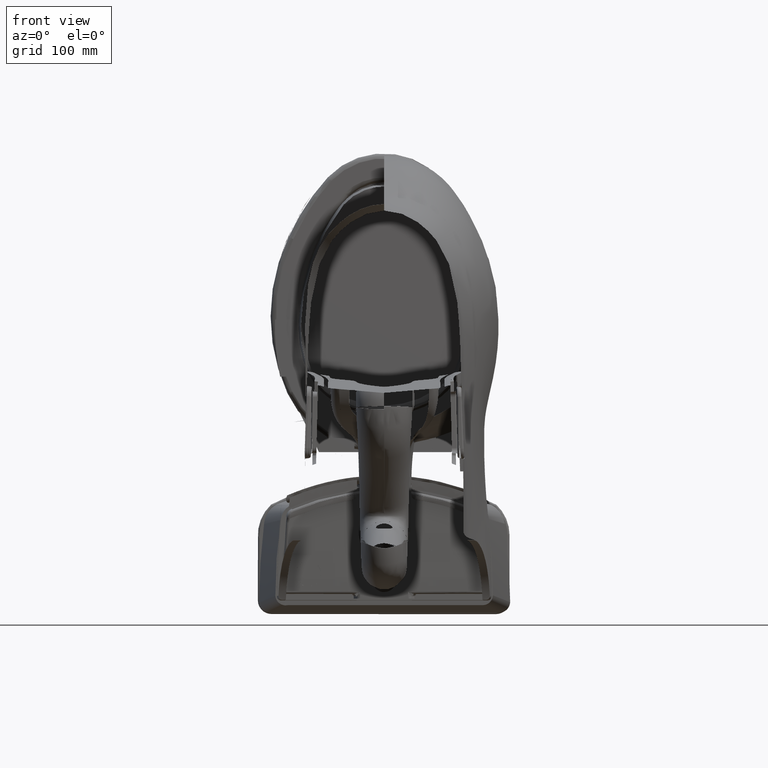
[diagram: clean part render]
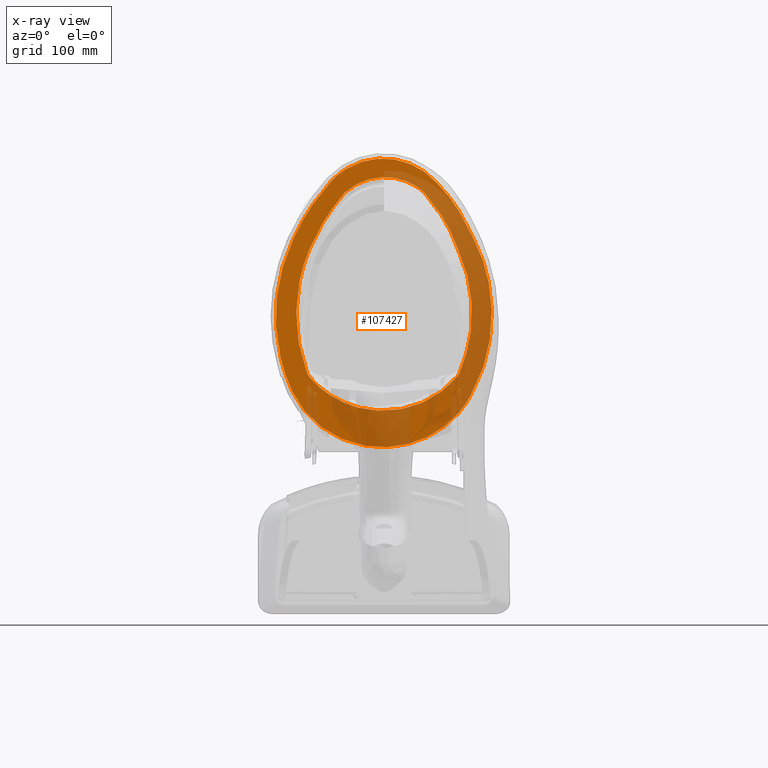
[diagram: x-ray — body ghosted, one internal face saturated and labeled with its STEP entity id]
A machine part, front view, then the same camera in x-ray: the body is ghosted and one INTERNAL B-rep face — a face not visible from any outside direction — is saturated and labeled: STEP entity #107427.
In plain terms, the highlighted planar face has unit normal (0, -1, 0).
Its self-contained STEP definition (entity closure, byte-faithful):
#9 = CARTESIAN_POINT ( 'NONE',  ( -4.669779761377236900, -12.35315010874654400, 0.7725978460830961200 ) ) ;
#158 = B_SPLINE_CURVE_WITH_KNOTS ( 'NONE', 3,
 ( #155656, #10050, #44532, #107279, #34448, #129167 ),
 .UNSPECIFIED., .F., .F.,
 ( 4, 2, 4 ),
 ( 0.0000000000000000000, 0.4990637102294244200, 0.9981274204588488400 ),
 .UNSPECIFIED. ) ;
#245 = CARTESIAN_POINT ( 'NONE',  ( -0.3920707766531103000, -2.325511953292913600, 0.7725978460837795700 ) ) ;
#478 = CARTESIAN_POINT ( 'NONE',  ( 2.002280061490929100, -0.3979767425816975200, 0.7725978460264896200 ) ) ;
#489 = CARTESIAN_POINT ( 'NONE',  ( 6.164669573252279400, -5.000828981089080500, 0.7725978448628684200 ) ) ;
#762 = CARTESIAN_POINT ( 'NONE',  ( 1.657319613992480200, -2.561519792685433000, 0.7725978460837795700 ) ) ;
#1288 = CARTESIAN_POINT ( 'NONE',  ( -3.326612292280315400, -3.263275277790945100, 0.7725978460837795700 ) ) ;
#1729 = CARTESIAN_POINT ( 'NONE',  ( 5.748355124389373600, -9.907585766883871200, 0.7725978460837795700 ) ) ;
#2259 = CARTESIAN_POINT ( 'NONE',  ( 5.779347650297983000, -7.154381951116368700, 0.7725978460837795700 ) ) ;
#2337 = CARTESIAN_POINT ( 'NONE',  ( -4.037140288301012300, -3.798934178944692400, 0.7725978460837794600 ) ) ;
#2481 = PLANE ( 'NONE',  #38969 ) ;
#2717 = CARTESIAN_POINT ( 'NONE',  ( 5.479175904001190000, -13.21659062506076900, 0.7725966181693841900 ) ) ;
#2870 = CARTESIAN_POINT ( 'NONE',  ( -4.701702766705125200, -4.490626281361876700, 0.7725978460837794600 ) ) ;
#3013 = DIRECTION ( 'NONE',  ( -1.000000000000000000, 0.0000000000000000000, -0.0000000000000000000 ) ) ;
#4687 = CARTESIAN_POINT ( 'NONE',  ( 2.099210194329982100, -17.48628316189977000, 0.7725978459827457200 ) ) ;
#4983 = VERTEX_POINT ( 'NONE', #137037 ) ;
#5824 = CARTESIAN_POINT ( 'NONE',  ( -5.660339307413952500, -13.02649773354710100, 0.7725978367612504900 ) ) ;
#6134 = EDGE_CURVE ( 'NONE', #39877, #57457, #17722, .T. ) ;
#8695 = CARTESIAN_POINT ( 'NONE',  ( 3.884164596736062100, -13.97749283188150000, 0.7725974613814649000 ) ) ;
#9405 = CARTESIAN_POINT ( 'NONE',  ( 4.302381671055888600, -15.29890389705522900, 0.7725977861414616800 ) ) ;
#9581 = CARTESIAN_POINT ( 'NONE',  ( -4.009093889609284900, -1.367279434801679900, 0.7725978460779485700 ) ) ;
#9911 = EDGE_LOOP ( 'NONE', ( #67146, #143875, #155766, #146006, #81087, #135890, #86311, #57634, #90700 ) ) ;
#10050 = CARTESIAN_POINT ( 'NONE',  ( -3.768116901248740500, -16.11721389943625800, 0.7725978460837795700 ) ) ;
#10112 = CARTESIAN_POINT ( 'NONE',  ( -3.304285500179292800, -0.8920013438489806700, 0.7725978460740519100 ) ) ;
#10432 = CARTESIAN_POINT ( 'NONE',  ( -4.778795318902705700, -4.602506205538563000, 0.7725978460837793500 ) ) ;
#10646 = CARTESIAN_POINT ( 'NONE',  ( -1.438350107723826800, -0.1786885459336738100, 0.7725978460611261400 ) ) ;
#10935 = CARTESIAN_POINT ( 'NONE',  ( 1.576039298657716700, -2.538535017898031500, 0.7725978460837795700 ) ) ;
#11161 = CARTESIAN_POINT ( 'NONE',  ( -2.536377864032248700, -0.5153061874789044400, 0.7725978460691690400 ) ) ;
#11442 = CARTESIAN_POINT ( 'NONE',  ( 3.750852303692794100, -3.657433556852522000, 0.7725978460837795700 ) ) ;
#11961 = CARTESIAN_POINT ( 'NONE',  ( 1.320478238995866200, -2.474858513301968300, 0.7725978460837795700 ) ) ;
#12221 = CARTESIAN_POINT ( 'NONE',  ( 5.480895730464324900, -13.21337790979908400, 0.7725953934359218700 ) ) ;
#12491 = CARTESIAN_POINT ( 'NONE',  ( -1.002147212140945200, -2.389478314491338700, 0.7725978460837795700 ) ) ;
#12738 = CARTESIAN_POINT ( 'NONE',  ( 6.677801258433408500, -7.479461234123879100, 0.7725977848637984900 ) ) ;
#13015 = CARTESIAN_POINT ( 'NONE',  ( 4.135942194806526500, -3.997048674490201800, 0.7725978460837794600 ) ) ;
#13525 = CARTESIAN_POINT ( 'NONE',  ( -4.113244636608624400, -3.866365499047542500, 0.7725978460837795700 ) ) ;
#13997 = CARTESIAN_POINT ( 'NONE',  ( 4.671538096263875100, -4.633697563927823300, 0.7725978460837795700 ) ) ;
#14532 =( BOUNDED_CURVE ( )  B_SPLINE_CURVE ( 3, ( #129262, #104246, #19779, #140432 ),
 .UNSPECIFIED., .F., .F. ) 
 B_SPLINE_CURVE_WITH_KNOTS ( ( 4, 4 ),
 ( 0.0000000000000000000, 1.000000000000000000 ),
 .UNSPECIFIED. ) 
 CURVE ( )  GEOMETRIC_REPRESENTATION_ITEM ( )  RATIONAL_B_SPLINE_CURVE ( ( 1.000000000000000000, 0.9939395604693852500, 0.9939395604693852500, 1.000000000000000000 ) ) 
 REPRESENTATION_ITEM ( '' )  );
#14742 = CARTESIAN_POINT ( 'NONE',  ( 5.687059689474409700, -3.169432824957086700, 0.7725978460837795700 ) ) ;
#15011 = B_SPLINE_CURVE_WITH_KNOTS ( 'NONE', 3,
 ( #65255, #149824, #53016, #101414 ),
 .UNSPECIFIED., .F., .F.,
 ( 4, 4 ),
 ( 0.9953565597775911900, 1.000000000000000000 ),
 .UNSPECIFIED. ) ;
#15027 = CARTESIAN_POINT ( 'NONE',  ( -4.701702766705125200, -4.490626281361876700, 0.7725978460837794600 ) ) ;
#15122 = CARTESIAN_POINT ( 'NONE',  ( -2.514960868314960700, -2.831690198003149900, 0.7725978460837795700 ) ) ;
#15290 = CARTESIAN_POINT ( 'NONE',  ( -5.663680293045708900, -13.01903612620339800, 0.7725978398454184100 ) ) ;
#15998 = ORIENTED_EDGE ( 'NONE', *, *, #53065, .F. ) ;
#16047 = CARTESIAN_POINT ( 'NONE',  ( 5.474260704766879600, -13.22576853858697300, 0.7725953811638974800 ) ) ;
#16820 = CARTESIAN_POINT ( 'NONE',  ( 6.704659037840631400, -8.264545431985476800, 0.7725977117835412000 ) ) ;
#17126 = CARTESIAN_POINT ( 'NONE',  ( 5.466105836528326400, -13.24091792027046700, 0.7725966060811750900 ) ) ;
#17722 = B_SPLINE_CURVE_WITH_KNOTS ( 'NONE', 3,
 ( #117634, #45262, #129369, #130401, #117122, #8695, #33619, #44744, #93711, #129882 ),
 .UNSPECIFIED., .F., .F.,
 ( 4, 2, 2, 2, 4 ),
 ( 0.0000000000000000000, 0.2500000000000000000, 0.5000000000000000000, 0.7500000000000000000, 1.000000000000000000 ),
 .UNSPECIFIED. ) ;
#18312 = CARTESIAN_POINT ( 'NONE',  ( -2.424926350662635100, -15.93208673287031700, 0.7725978460837795700 ) ) ;
#19729 = CARTESIAN_POINT ( 'NONE',  ( -4.437148341030971100, -1.734387228151944100, 0.7725978460799999300 ) ) ;
#19779 = CARTESIAN_POINT ( 'NONE',  ( 4.619006300385087200, -4.533173570825635300, 0.7725978460837796800 ) ) ;
#20077 = CARTESIAN_POINT ( 'NONE',  ( 3.525997713636995100, -16.25327247754162100, 0.7725975219584837500 ) ) ;
#20596 = CARTESIAN_POINT ( 'NONE',  ( 4.372823930880692000, -15.20056981628958100, 0.7725977979074437600 ) ) ;
#20883 = CARTESIAN_POINT ( 'NONE',  ( 3.295854227250323700, -16.49683880513406100, 0.7725976146332020900 ) ) ;
#21638 = CARTESIAN_POINT ( 'NONE',  ( 3.299519274458347300, -16.49307057712919500, 0.7725973856245133000 ) ) ;
#21795 = CARTESIAN_POINT ( 'NONE',  ( -3.277685147803230100, -16.65289498747220200, 0.7725978452755103400 ) ) ;
#21834 = CARTESIAN_POINT ( 'NONE',  ( -3.781675888750837300, -1.198188161286448400, 0.7725978460767593000 ) ) ;
#22328 = CARTESIAN_POINT ( 'NONE',  ( -2.268414802652979600, -0.4128032672741488400, 0.7725978460673225100 ) ) ;
#22865 = CARTESIAN_POINT ( 'NONE',  ( 4.222037878118186400, -1.740036459468596000, 0.7725978459901690100 ) ) ;
#22879 = CARTESIAN_POINT ( 'NONE',  ( 5.923828327673914100, -12.28353543535259400, 0.7725961990199052800 ) ) ;
#23153 = CARTESIAN_POINT ( 'NONE',  ( 4.273767264847099200, -4.135945047206568000, 0.7725978460837794600 ) ) ;
#23404 = CARTESIAN_POINT ( 'NONE',  ( 6.621711293720980300, -9.694229755208160900, 0.7725974507700512600 ) ) ;
#23669 = CARTESIAN_POINT ( 'NONE',  ( 4.063731427319426700, -3.928192793653023000, 0.7725978460837795700 ) ) ;
#23910 = CARTESIAN_POINT ( 'NONE',  ( 6.702034227701016500, -7.876012411014855300, 0.7725977567828390400 ) ) ;
#24169 = CARTESIAN_POINT ( 'NONE',  ( 0.5633258153572834300, -2.347172865113385900, 0.7725978460837795700 ) ) ;
#24414 = CARTESIAN_POINT ( 'NONE',  ( -3.054313151222180200, -0.7549058322254756900, 0.7725978460725333500 ) ) ;
#24427 = CARTESIAN_POINT ( 'NONE',  ( 6.426719006440735300, -10.72429954404106300, 0.7725970893405123000 ) ) ;
#24701 = CARTESIAN_POINT ( 'NONE',  ( 3.487965639175000000, -3.454602893701575400, 0.7725978460837795700 ) ) ;
#24940 = CARTESIAN_POINT ( 'NONE',  ( 5.506538782737425000, -13.16519873299705200, 0.7725954408171927800 ) ) ;
#25212 = CARTESIAN_POINT ( 'NONE',  ( -0.1785082357320866300, -2.318972623242913300, 0.7725978460837795700 ) ) ;
#25592 = VERTEX_POINT ( 'NONE', #88866 ) ;
#25755 = CARTESIAN_POINT ( 'NONE',  ( -4.395022771217848700, -4.140360554740132300, 0.7725978460837794600 ) ) ;
#26262 = CARTESIAN_POINT ( 'NONE',  ( -1.458368430649212600, -2.480045027677952900, 0.7725978460837795700 ) ) ;
#26789 = CARTESIAN_POINT ( 'NONE',  ( -3.005019402060236500, -3.071159498876771200, 0.7725978460837795700 ) ) ;
#29818 = ORIENTED_EDGE ( 'NONE', *, *, #114361, .F. ) ;
#30771 = CARTESIAN_POINT ( 'NONE',  ( -5.663680293045708900, -13.01903612620339800, 0.7725978398454184100 ) ) ;
#32030 =( BOUNDED_CURVE ( )  B_SPLINE_CURVE ( 3, ( #121867, #146795, #134623, #37310 ),
 .UNSPECIFIED., .F., .T. ) 
 B_SPLINE_CURVE_WITH_KNOTS ( ( 4, 4 ),
 ( 0.0000000000000000000, 1.000000000000000000 ),
 .UNSPECIFIED. ) 
 CURVE ( )  GEOMETRIC_REPRESENTATION_ITEM ( )  RATIONAL_B_SPLINE_CURVE ( ( 1.000000000000000000, 0.9987129968077110800, 0.9987129968077110800, 1.000000000000000000 ) ) 
 REPRESENTATION_ITEM ( '' )  );
#32243 = CARTESIAN_POINT ( 'NONE',  ( 3.308673489675796600, -16.48364534458503200, 0.7725973916941046800 ) ) ;
#32759 = CARTESIAN_POINT ( 'NONE',  ( 4.059493687666369000, -15.62374078392970500, 0.7725977342058859600 ) ) ;
#33533 = EDGE_CURVE ( 'NONE', #67991, #112594, #15011, .T. ) ;
#33619 = CARTESIAN_POINT ( 'NONE',  ( 4.045296922489184200, -13.67380111647954200, 0.7725971968985945200 ) ) ;
#33745 = VERTEX_POINT ( 'NONE', #17126 ) ;
#34271 = CARTESIAN_POINT ( 'NONE',  ( 5.411468708408262000, -3.321911707283066800, 0.7725978460410978200 ) ) ;
#34323 = CARTESIAN_POINT ( 'NONE',  ( 5.466105836528326400, -13.24091792027046700, 0.7725966060811750900 ) ) ;
#34448 = CARTESIAN_POINT ( 'NONE',  ( -5.363344787101294900, -13.68927988847712700, 0.7725978336537406800 ) ) ;
#34519 = CARTESIAN_POINT ( 'NONE',  ( 2.805812271137034100, -0.7419178133340803600, 0.7725978460153684100 ) ) ;
#35332 = CARTESIAN_POINT ( 'NONE',  ( 2.874581644722520300, -3.063245707363779800, 0.7725978460837796800 ) ) ;
#35560 = CARTESIAN_POINT ( 'NONE',  ( 2.543132040228286400, -0.6148599581782302500, 0.7725978460191843500 ) ) ;
#35575 = CARTESIAN_POINT ( 'NONE',  ( 5.770000168610959400, -12.63148730583780100, 0.7725959220838059000 ) ) ;
#35850 = CARTESIAN_POINT ( 'NONE',  ( 1.050707071181693000, -2.418336230278346700, 0.7725978460837795700 ) ) ;
#36086 = CARTESIAN_POINT ( 'NONE',  ( 1.158282935566217600, -0.1672770940510653600, 0.7725978460366264000 ) ) ;
#36099 = CARTESIAN_POINT ( 'NONE',  ( 5.556319602925595900, -13.06983885708520500, 0.7725955325093529800 ) ) ;
#36370 = CARTESIAN_POINT ( 'NONE',  ( 0.1427039727440944900, -2.320277684917716200, 0.7725978460837795700 ) ) ;
#36607 = CARTESIAN_POINT ( 'NONE',  ( 3.309885883287458700, -1.030727995046670800, 0.7725978460074065500 ) ) ;
#36618 = CARTESIAN_POINT ( 'NONE',  ( 5.479390810891169700, -13.21618918402831400, 0.7725953906525975200 ) ) ;
#36893 = CARTESIAN_POINT ( 'NONE',  ( -1.097123122828740100, -2.405498581126771300, 0.7725978460837795700 ) ) ;
#37310 = CARTESIAN_POINT ( 'NONE',  ( -2.424926350662635100, -15.93208673287031700, 0.7725978460837795700 ) ) ;
#37419 = CARTESIAN_POINT ( 'NONE',  ( -0.9050944572433071700, -2.374797784290551700, 0.7725978460837796800 ) ) ;
#37941 = CARTESIAN_POINT ( 'NONE',  ( -2.889666365614173700, -3.009240386958267800, 0.7725978460837796800 ) ) ;
#38455 = CARTESIAN_POINT ( 'NONE',  ( -3.877468710889001800, -3.665563429872357800, 0.7725978460837794600 ) ) ;
#38563 = VERTEX_POINT ( 'NONE', #84500 ) ;
#38969 = AXIS2_PLACEMENT_3D ( 'NONE', #14742, #99725, #3013 ) ;
#38993 = CARTESIAN_POINT ( 'NONE',  ( -1.545097265437795500, -2.500545182166929300, 0.7725978460837796800 ) ) ;
#39013 =( BOUNDED_CURVE ( )  B_SPLINE_CURVE ( 3, ( #69450, #93944, #84832, #83782 ),
 .UNSPECIFIED., .F., .T. ) 
 B_SPLINE_CURVE_WITH_KNOTS ( ( 4, 4 ),
 ( 0.0000000000000000000, 1.000000000000000000 ),
 .UNSPECIFIED. ) 
 CURVE ( )  GEOMETRIC_REPRESENTATION_ITEM ( )  RATIONAL_B_SPLINE_CURVE ( ( 1.000000000000000000, 0.9916812602425008100, 0.9916812602425008100, 1.000000000000000000 ) ) 
 REPRESENTATION_ITEM ( '' )  );
#39504 = CARTESIAN_POINT ( 'NONE',  ( -2.769769936143306600, -2.948579490844488700, 0.7725978460837795700 ) ) ;
#39751 = CARTESIAN_POINT ( 'NONE',  ( 1.249246981401041800, -17.85003451807726200, 0.7725978458185660500 ) ) ;
#39877 = VERTEX_POINT ( 'NONE', #58717 ) ;
#40109 = B_SPLINE_CURVE_WITH_KNOTS ( 'NONE', 3,
 ( #94078, #155195, #155709, #116971, #82351, #153634, #19729, #9581, #21834, #10112, #24414, #11161, #22328, #71692, #10646, #95621, #131831, #72227, #46707, #84462, #36086, #95119, #478, #35560, #34519, #36607, #59453, #60505, #22865, #107344, #157286, #73266, #107855, #119579 ),
 .UNSPECIFIED., .F., .F.,
 ( 4, 2, 2, 2, 2, 2, 2, 2, 2, 2, 2, 2, 2, 2, 2, 2, 4 ),
 ( 0.0000000000000000000, 0.06250000000000011100, 0.1250000000000002200, 0.1875000000000001900, 0.2500000000000001700, 0.3125000000000001700, 0.3750000000000001700, 0.4375000000000001700, 0.5000000000000001100, 0.5625000000000001100, 0.6250000000000001100, 0.6875000000000001100, 0.7500000000000001100, 0.8125000000000001100, 0.8750000000000001100, 0.9375000000000001100, 1.000000000000000000 ),
 .UNSPECIFIED. ) ;
#40398 = ORIENTED_EDGE ( 'NONE', *, *, #121587, .F. ) ;
#43192 = CARTESIAN_POINT ( 'NONE',  ( -0.9731751309077471000, -17.23697148504819100, 0.7725978460837794600 ) ) ;
#44532 = CARTESIAN_POINT ( 'NONE',  ( -4.215591369573378900, -15.54221293403261900, 0.7725978445300245600 ) ) ;
#44744 = CARTESIAN_POINT ( 'NONE',  ( 4.337623030555213300, -13.04990475628386200, 0.7725961582034601700 ) ) ;
#44904 = ORIENTED_EDGE ( 'NONE', *, *, #6134, .F. ) ;
#44931 = CARTESIAN_POINT ( 'NONE',  ( 3.747145042193587900, -16.00506415188352300, 0.7725976287751669100 ) ) ;
#45262 = CARTESIAN_POINT ( 'NONE',  ( 2.727613361103703200, -15.66079108012722200, 0.7725978460837795700 ) ) ;
#45697 = CARTESIAN_POINT ( 'NONE',  ( -5.432541544192349500, -7.209167238013523400, 0.7725978460836371300 ) ) ;
#46628 = ORIENTED_EDGE ( 'NONE', *, *, #156958, .F. ) ;
#46707 = CARTESIAN_POINT ( 'NONE',  ( 0.2917680323015656700, -0.05353544993352216800, 0.7725978460457779700 ) ) ;
#46728 = CARTESIAN_POINT ( 'NONE',  ( 5.482614325257926200, -13.21016531428569100, 0.7725953966140782800 ) ) ;
#47006 = CARTESIAN_POINT ( 'NONE',  ( 2.758759191796141200, -3.001457075261023900, 0.7725978460837795700 ) ) ;
#47522 = CARTESIAN_POINT ( 'NONE',  ( 2.037170117700354500, -2.686865965332283900, 0.7725978460837795700 ) ) ;
#47772 = CARTESIAN_POINT ( 'NONE',  ( 6.704727786120788100, -8.276261511154556800, 0.7725977104178767300 ) ) ;
#47809 = CARTESIAN_POINT ( 'NONE',  ( -5.118077886959701700, -11.11812057932228900, 0.7725978460828396600 ) ) ;
#48050 = CARTESIAN_POINT ( 'NONE',  ( 4.525017146133720300, -4.417882267571592100, 0.7725978460837794600 ) ) ;
#48290 = CARTESIAN_POINT ( 'NONE',  ( 5.836779085619620700, -4.158053970919739100, 0.7725978462581955000 ) ) ;
#48555 = CARTESIAN_POINT ( 'NONE',  ( 0.03560310623472440900, -2.318494858440157500, 0.7725978460837795700 ) ) ;
#48789 = CARTESIAN_POINT ( 'NONE',  ( 4.583090661140253100, -4.489117721871111600, 0.7725978447437531500 ) ) ;
#49080 = CARTESIAN_POINT ( 'NONE',  ( 2.177879760545905300, -2.741019346451181600, 0.7725978460837795700 ) ) ;
#50014 = VERTEX_POINT ( 'NONE', #83198 ) ;
#50055 = CARTESIAN_POINT ( 'NONE',  ( 4.584083333377694900, -12.40269357612047200, 0.7725959995159764600 ) ) ;
#50120 = CARTESIAN_POINT ( 'NONE',  ( -4.584659986388760300, -4.349607054706517300, 0.7725978460837795700 ) ) ;
#50637 = CARTESIAN_POINT ( 'NONE',  ( -4.460187196706479000, -4.209784595195809100, 0.7725978460837801300 ) ) ;
#51176 = CARTESIAN_POINT ( 'NONE',  ( -3.116125315718897900, -3.134208085179134500, 0.7725978460837795700 ) ) ;
#51530 = VERTEX_POINT ( 'NONE', #15290 ) ;
#51698 = CARTESIAN_POINT ( 'NONE',  ( -4.258494750479290000, -4.002564180287778100, 0.7725978460837799000 ) ) ;
#51948 = CARTESIAN_POINT ( 'NONE',  ( -3.066035039330349500, -16.87664552634426900, 0.7725978438610392500 ) ) ;
#52419 = EDGE_CURVE ( 'NONE', #51530, #70390, #88636, .T. ) ;
#52470 = CARTESIAN_POINT ( 'NONE',  ( 1.541709312591408800, -17.74825268259379400, 0.7725978458817118800 ) ) ;
#53002 = CARTESIAN_POINT ( 'NONE',  ( 0.3423532005103364600, -18.02975115445012800, 0.7725978455786112200 ) ) ;
#53016 = CARTESIAN_POINT ( 'NONE',  ( 3.287396675807511500, -16.50552305008612200, 0.7725973775226157000 ) ) ;
#53065 = EDGE_CURVE ( 'NONE', #38563, #80734, #14532, .T. ) ;
#53984 = EDGE_CURVE ( 'NONE', #57457, #38563, #127562, .T. ) ;
#57169 = CARTESIAN_POINT ( 'NONE',  ( 3.302266918957677400, -16.49024377471441500, 0.7725973874511333800 ) ) ;
#57403 = CARTESIAN_POINT ( 'NONE',  ( -4.669779761377236900, -12.35315010874654400, 0.7725978460830961200 ) ) ;
#57457 = VERTEX_POINT ( 'NONE', #123657 ) ;
#57634 = ORIENTED_EDGE ( 'NONE', *, *, #127851, .F. ) ;
#58717 = CARTESIAN_POINT ( 'NONE',  ( 2.501841613428653400, -15.91199077545257100, 0.7725978460837795700 ) ) ;
#58951 = CARTESIAN_POINT ( 'NONE',  ( 5.479175904001190000, -13.21659062506076900, 0.7725966181693841900 ) ) ;
#59225 = CARTESIAN_POINT ( 'NONE',  ( -1.280824634918110000, -2.441149659194094700, 0.7725978460837795700 ) ) ;
#59453 = CARTESIAN_POINT ( 'NONE',  ( 3.551271078856959500, -1.192479874622117000, 0.7725978460032606500 ) ) ;
#59464 = CARTESIAN_POINT ( 'NONE',  ( 6.296918177415778800, -5.422532762504853400, 0.7725978432931254200 ) ) ;
#59738 = CARTESIAN_POINT ( 'NONE',  ( 3.578486927474842500, -3.522537489838977200, 0.7725978460837795700 ) ) ;
#59989 = CARTESIAN_POINT ( 'NONE',  ( 6.675751349551086700, -9.129979863059226400, 0.7725975775947362400 ) ) ;
#60029 = CARTESIAN_POINT ( 'NONE',  ( -4.669480541854659900, -12.35386655553075900, 0.7725978460833239400 ) ) ;
#60262 = CARTESIAN_POINT ( 'NONE',  ( 3.394382886198071600, -3.387337562744488800, 0.7725978460837795700 ) ) ;
#60396 =( BOUNDED_CURVE ( )  B_SPLINE_CURVE ( 3, ( #18312, #43192, #115557, #89526 ),
 .UNSPECIFIED., .F., .F. ) 
 B_SPLINE_CURVE_WITH_KNOTS ( ( 4, 4 ),
 ( 0.0000000000000000000, 1.000000000000000000 ),
 .UNSPECIFIED. ) 
 CURVE ( )  GEOMETRIC_REPRESENTATION_ITEM ( )  RATIONAL_B_SPLINE_CURVE ( ( 1.000000000000000000, 0.8321536733248446900, 0.8321536733248446900, 1.000000000000000000 ) ) 
 REPRESENTATION_ITEM ( '' )  );
#60505 = CARTESIAN_POINT ( 'NONE',  ( 4.007351411818018700, -1.547135637194743600, 0.7725978459946418700 ) ) ;
#60517 = CARTESIAN_POINT ( 'NONE',  ( 6.701796210828338700, -8.597719440003563900, 0.7725976684646100900 ) ) ;
#60800 = CARTESIAN_POINT ( 'NONE',  ( 2.638357810575000100, -2.940941533656693100, 0.7725978460837795700 ) ) ;
#61312 = CARTESIAN_POINT ( 'NONE',  ( 2.986125319457322700, -3.126176489555511800, 0.7725978460837795700 ) ) ;
#61605 = CARTESIAN_POINT ( 'NONE',  ( -4.669580290594073100, -12.35362774365309600, 0.7725978460824124400 ) ) ;
#61838 = CARTESIAN_POINT ( 'NONE',  ( -1.872436711557874400, -2.591446591877559300, 0.7725978460837796800 ) ) ;
#62207 = CARTESIAN_POINT ( 'NONE',  ( 5.466105836528326400, -13.24091792027046700, 0.7725966060811750900 ) ) ;
#62880 = CARTESIAN_POINT ( 'NONE',  ( -3.223245709426378400, -3.198277631071653200, 0.7725978460837794600 ) ) ;
#63416 = CARTESIAN_POINT ( 'NONE',  ( -3.958582118302450800, -3.731984938027666400, 0.7725978460837796800 ) ) ;
#63948 = CARTESIAN_POINT ( 'NONE',  ( -1.949670232144881800, -2.616061956959842700, 0.7725978460837794600 ) ) ;
#64435 = EDGE_LOOP ( 'NONE', ( #121044, #149199, #77023, #77642, #74628, #40398, #29818, #46628, #15998, #76505, #44904 ) ) ;
#65107 = CARTESIAN_POINT ( 'NONE',  ( -4.802866593604301600, -4.666270828217866700, 0.7725978460837795700 ) ) ;
#65242 = CARTESIAN_POINT ( 'NONE',  ( 0.6495594566122867600, -17.99078597660743400, 0.7725978456670155000 ) ) ;
#65255 = CARTESIAN_POINT ( 'NONE',  ( 3.295854227250323700, -16.49683880513406100, 0.7725976146332020900 ) ) ;
#67146 = ORIENTED_EDGE ( 'NONE', *, *, #80777, .F. ) ;
#67991 = VERTEX_POINT ( 'NONE', #20883 ) ;
#68880 = CARTESIAN_POINT ( 'NONE',  ( 3.296735637054728900, -16.49593298045341800, 0.7725973837708062200 ) ) ;
#69410 = CARTESIAN_POINT ( 'NONE',  ( 4.878709934840707700, -14.42087351136559400, 0.7725978419380685700 ) ) ;
#69450 = CARTESIAN_POINT ( 'NONE',  ( -4.669480541854659900, -12.35386655553075900, 0.7725978460833239400 ) ) ;
#69709 = VERTEX_POINT ( 'NONE', #34271 ) ;
#69938 = CARTESIAN_POINT ( 'NONE',  ( 3.440704916573102100, -16.34514980652598800, 0.7725974737821447200 ) ) ;
#70390 = VERTEX_POINT ( 'NONE', #113279 ) ;
#70463 = CARTESIAN_POINT ( 'NONE',  ( 3.346984094571978700, -16.44398343211719600, 0.7725974166205716900 ) ) ;
#71229 = B_SPLINE_CURVE_WITH_KNOTS ( 'NONE', 3,
 ( #5824, #103047, #103576, #30771 ),
 .UNSPECIFIED., .F., .F.,
 ( 4, 4 ),
 ( 0.9981274204588488400, 1.000000000000000000 ),
 .UNSPECIFIED. ) ;
#71466 = CARTESIAN_POINT ( 'NONE',  ( 1.964527875279330500, -2.660570618704330800, 0.7725978460837795700 ) ) ;
#71692 = CARTESIAN_POINT ( 'NONE',  ( -1.719400748864031700, -0.2444932995256483600, 0.7725978460633010600 ) ) ;
#71704 = CARTESIAN_POINT ( 'NONE',  ( 6.503961417491601600, -6.257127923894620000, 0.7725978321305075900 ) ) ;
#71718 = EDGE_CURVE ( 'NONE', #136068, #4983, #158, .T. ) ;
#71746 = CARTESIAN_POINT ( 'NONE',  ( -5.387103827398075100, -9.833575137370164800, 0.7725978460831814900 ) ) ;
#71987 = CARTESIAN_POINT ( 'NONE',  ( 4.403290167607495100, -4.276274614539490300, 0.7725978460837794600 ) ) ;
#72227 = CARTESIAN_POINT ( 'NONE',  ( 0.0005814543663178363300, -0.04188782984717195200, 0.7725978460486099300 ) ) ;
#72238 = CARTESIAN_POINT ( 'NONE',  ( 6.562659476263861300, -10.09435598114667500, 0.7725973358994383500 ) ) ;
#72514 = CARTESIAN_POINT ( 'NONE',  ( 1.141996581413188900, -2.436462600207480700, 0.7725978460837795700 ) ) ;
#72759 = CARTESIAN_POINT ( 'NONE',  ( 5.486047628785289700, -13.20374039596646800, 0.7725954029620579800 ) ) ;
#73029 = CARTESIAN_POINT ( 'NONE',  ( -0.2855198072402362300, -2.321233139161417400, 0.7725978460837795700 ) ) ;
#73266 = CARTESIAN_POINT ( 'NONE',  ( 5.134466463407842500, -2.832462316269161100, 0.7725978459661593200 ) ) ;
#73281 = EDGE_CURVE ( 'NONE', #103329, #154678, #32030, .T. ) ;
#73559 = CARTESIAN_POINT ( 'NONE',  ( 1.736743952190118000, -2.585270378102756200, 0.7725978460837795700 ) ) ;
#74075 = CARTESIAN_POINT ( 'NONE',  ( -2.099064769822834600, -2.667185513755512300, 0.7725978460837795700 ) ) ;
#74628 = ORIENTED_EDGE ( 'NONE', *, *, #121600, .F. ) ;
#75352 = CARTESIAN_POINT ( 'NONE',  ( 3.081414627625572900, -16.74266751908155000, 0.7725978460837799000 ) ) ;
#75592 = FACE_BOUND ( 'NONE', #64435, .T. ) ;
#76505 = ORIENTED_EDGE ( 'NONE', *, *, #53984, .F. ) ;
#76942 = CARTESIAN_POINT ( 'NONE',  ( -0.2734850741735062600, -18.04317342902165000, 0.7725978453765440800 ) ) ;
#77023 = ORIENTED_EDGE ( 'NONE', *, *, #73281, .F. ) ;
#77473 = CARTESIAN_POINT ( 'NONE',  ( -2.830954062360220700, -17.07821871363068700, 0.7725978440504776000 ) ) ;
#77642 = ORIENTED_EDGE ( 'NONE', *, *, #134164, .F. ) ;
#78755 = CARTESIAN_POINT ( 'NONE',  ( 2.501841613428653400, -15.91199077545257100, 0.7725978460837795700 ) ) ;
#79604 = VERTEX_POINT ( 'NONE', #86362 ) ;
#80355 = EDGE_CURVE ( 'NONE', #79604, #33745, #138776, .T. ) ;
#80584 = CARTESIAN_POINT ( 'NONE',  ( 3.853664269600741000, -15.87897748699027300, 0.7725976694131879700 ) ) ;
#80734 = VERTEX_POINT ( 'NONE', #48789 ) ;
#80777 = EDGE_CURVE ( 'NONE', #112594, #136068, #142515, .T. ) ;
#81087 = ORIENTED_EDGE ( 'NONE', *, *, #128423, .F. ) ;
#81199 = EDGE_CURVE ( 'NONE', #33745, #67991, #149402, .T. ) ;
#81351 = CARTESIAN_POINT ( 'NONE',  ( -4.802866593604301600, -4.666270828217866700, 0.7725978460837795700 ) ) ;
#82351 = CARTESIAN_POINT ( 'NONE',  ( -5.008394039782635900, -2.353806951520804000, 0.7725978460822564600 ) ) ;
#83124 =( BOUNDED_CURVE ( )  B_SPLINE_CURVE ( 3, ( #151611, #139401, #115974, #78755 ),
 .UNSPECIFIED., .F., .F. ) 
 B_SPLINE_CURVE_WITH_KNOTS ( ( 4, 4 ),
 ( 0.0000000000000000000, 1.000000000000000000 ),
 .UNSPECIFIED. ) 
 CURVE ( )  GEOMETRIC_REPRESENTATION_ITEM ( )  RATIONAL_B_SPLINE_CURVE ( ( 1.000000000000000000, 0.9987999758137253700, 0.9987999758137253700, 1.000000000000000000 ) ) 
 REPRESENTATION_ITEM ( '' )  );
#83198 = CARTESIAN_POINT ( 'NONE',  ( -4.669480541854659900, -12.35386655553075900, 0.7725978460833239400 ) ) ;
#83702 = CARTESIAN_POINT ( 'NONE',  ( -0.4977371142078740300, -2.331770854271260100, 0.7725978460837795700 ) ) ;
#83782 = CARTESIAN_POINT ( 'NONE',  ( -2.479758259578522600, -15.87626780100333900, 0.7725978460837795700 ) ) ;
#83954 = CARTESIAN_POINT ( 'NONE',  ( 6.015231563217663600, -12.05372992877473600, 0.7725963615157400700 ) ) ;
#84223 = CARTESIAN_POINT ( 'NONE',  ( 4.339532495423908300, -4.205940482140481300, 0.7725978460837793500 ) ) ;
#84297 = CARTESIAN_POINT ( 'NONE',  ( -5.663680293045708900, -13.01903612620339800, 0.7725978398454184100 ) ) ;
#84462 = CARTESIAN_POINT ( 'NONE',  ( 0.8706207996341812600, -0.1162284023175194600, 0.7725978460397863200 ) ) ;
#84500 = CARTESIAN_POINT ( 'NONE',  ( 4.671538096263875100, -4.633697563927823300, 0.7725978460837795700 ) ) ;
#84748 = CARTESIAN_POINT ( 'NONE',  ( 4.465100247514127000, -4.346928263497679800, 0.7725978460837794600 ) ) ;
#84817 = CARTESIAN_POINT ( 'NONE',  ( -7.148269981038788000, -6.605959079521867700, 0.7725978460837795700 ) ) ;
#84832 = CARTESIAN_POINT ( 'NONE',  ( -3.393060033260823200, -14.82297004477311100, 0.7725978460837796800 ) ) ;
#84991 = CARTESIAN_POINT ( 'NONE',  ( 6.373502780214201000, -10.93920578348713800, 0.7725969946961274100 ) ) ;
#85037 = CARTESIAN_POINT ( 'NONE',  ( -5.460694715184207100, -9.178557602013624400, 0.7725978460833239400 ) ) ;
#85261 = CARTESIAN_POINT ( 'NONE',  ( -0.8060065953393701400, -2.361568189210236500, 0.7725978460837795700 ) ) ;
#85507 = CARTESIAN_POINT ( 'NONE',  ( 6.704678065747474500, -8.267556647051069500, 0.7725977114336870500 ) ) ;
#85782 = CARTESIAN_POINT ( 'NONE',  ( 2.382414565260197100, -2.824399836440551600, 0.7725978460837795700 ) ) ;
#86310 = CARTESIAN_POINT ( 'NONE',  ( -4.327813961199735700, -4.071278463837513700, 0.7725978460837795700 ) ) ;
#86311 = ORIENTED_EDGE ( 'NONE', *, *, #52419, .F. ) ;
#86362 = CARTESIAN_POINT ( 'NONE',  ( 5.479175904001190000, -13.21659062506076900, 0.7725966181693841900 ) ) ;
#86846 = CARTESIAN_POINT ( 'NONE',  ( -4.644086181488170900, -4.419977057305805700, 0.7725978460837796800 ) ) ;
#87737 = CARTESIAN_POINT ( 'NONE',  ( 5.469901193966578900, -13.23387613422223600, 0.7725953730999261000 ) ) ;
#87887 = CARTESIAN_POINT ( 'NONE',  ( -2.025191832187008200, -2.641323275077165400, 0.7725978460837795700 ) ) ;
#88408 = CARTESIAN_POINT ( 'NONE',  ( -2.311383602013779500, -2.747993174306299700, 0.7725978460837795700 ) ) ;
#88636 =( BOUNDED_CURVE ( )  B_SPLINE_CURVE ( 3, ( #84297, #145411, #84817, #95461 ),
 .UNSPECIFIED., .F., .F. ) 
 B_SPLINE_CURVE_WITH_KNOTS ( ( 4, 4 ),
 ( 0.0000000000000000000, 1.000000000000000000 ),
 .UNSPECIFIED. ) 
 CURVE ( )  GEOMETRIC_REPRESENTATION_ITEM ( )  RATIONAL_B_SPLINE_CURVE ( ( 1.000000000000000000, 0.9366581730941174700, 0.9366581730941174700, 1.000000000000000000 ) ) 
 REPRESENTATION_ITEM ( '' )  );
#88866 = CARTESIAN_POINT ( 'NONE',  ( -4.669779761377236900, -12.35315010874654400, 0.7725978460830961200 ) ) ;
#89526 = CARTESIAN_POINT ( 'NONE',  ( 2.448055194773695000, -15.96505606557572300, 0.7725978460837795700 ) ) ;
#90700 = ORIENTED_EDGE ( 'NONE', *, *, #71718, .F. ) ;
#92767 = CARTESIAN_POINT ( 'NONE',  ( 3.283113258319199500, -16.50991000718742500, 0.7725976103574786500 ) ) ;
#92853 = CARTESIAN_POINT ( 'NONE',  ( 3.581960144342118700, -16.19155088124907500, 0.7725975507962357100 ) ) ;
#93364 = CARTESIAN_POINT ( 'NONE',  ( 4.486369078800625400, -15.03539430691067800, 0.7725978126829807800 ) ) ;
#93711 = CARTESIAN_POINT ( 'NONE',  ( 4.468815713334246100, -12.72970074685605200, 0.7725953839909672800 ) ) ;
#93944 = CARTESIAN_POINT ( 'NONE',  ( -4.129090304970815400, -13.63898704986971600, 0.7725978460837796800 ) ) ;
#94078 = CARTESIAN_POINT ( 'NONE',  ( -5.737251587709579300, -3.542918596499470500, 0.7725978460837770200 ) ) ;
#94935 = CARTESIAN_POINT ( 'NONE',  ( 4.508732083103996800, -15.00224906868347200, 0.7725978152535867300 ) ) ;
#95119 = CARTESIAN_POINT ( 'NONE',  ( 1.724115364795581100, -0.3081499014637965100, 0.7725978460299776100 ) ) ;
#95461 = CARTESIAN_POINT ( 'NONE',  ( -5.737251587709579300, -3.542918596499470500, 0.7725978460837770200 ) ) ;
#95621 = CARTESIAN_POINT ( 'NONE',  ( -0.8684013435815441900, -0.08533503094772418300, 0.7725978460564478800 ) ) ;
#96184 = CARTESIAN_POINT ( 'NONE',  ( 6.249069735120484000, -11.37738242096748700, 0.7725967747050203100 ) ) ;
#96457 = CARTESIAN_POINT ( 'NONE',  ( 2.513037543275472400, -2.881857435733071100, 0.7725978460837795700 ) ) ;
#96697 = CARTESIAN_POINT ( 'NONE',  ( 5.641119893301610200, -3.736984236556135700, 0.7725978460837795700 ) ) ;
#96955 = CARTESIAN_POINT ( 'NONE',  ( 0.7643588055379527700, -2.371317341798031600, 0.7725978460837795700 ) ) ;
#97203 = CARTESIAN_POINT ( 'NONE',  ( 6.704713858833684100, -8.273708765984350700, 0.7725977107163248800 ) ) ;
#97473 = CARTESIAN_POINT ( 'NONE',  ( 3.832882448872099200, -3.724355505749438900, 0.7725978460837795700 ) ) ;
#98005 = CARTESIAN_POINT ( 'NONE',  ( 0.2494270747162204700, -2.324085395956299500, 0.7725978460837795700 ) ) ;
#98530 = CARTESIAN_POINT ( 'NONE',  ( -3.616149789914173700, -3.463084719664566900, 0.7725978460837795700 ) ) ;
#99500 = B_SPLINE_CURVE_WITH_KNOTS ( 'NONE', 3,
 ( #132374, #96697, #48290, #489, #59464, #71704, #108389, #12738, #23910, #16820, #85507, #145055, #97203, #47772, #144538, #121699, #133410, #156765, #119591, #60517, #145598, #132909, #59989, #23404, #72238, #24427, #84991, #96184, #107867, #83954, #22879, #35575, #120658, #156244, #108892, #36099, #121188, #24940, #109962, #72759, #46728, #12221, #109432, #131845, #36618, #58951 ),
 .UNSPECIFIED., .F., .F.,
 ( 4, 2, 2, 2, 2, 2, 2, 1, 1, 1, 1, 2, 2, 2, 2, 2, 2, 2, 2, 2, 1, 1, 1, 1, 1, 1, 2, 4 ),
 ( 0.0000000000000000000, 0.1246520880192820600, 0.2493041760385641100, 0.3739562640578462100, 0.4986083520771282300, 0.4995821965147789200, 0.5000691187336041600, 0.5005560409524293400, 0.5025037298277296200, 0.5063991075783305100, 0.5141898630795324100, 0.5297713740819365300, 0.5609343960867448900, 0.6232604400963611700, 0.7479125281155937200, 0.8102385721252101100, 0.8725646161348262800, 0.9348906601444425500, 0.9660536821492504700, 0.9816351931516544800, 0.9894259486528562700, 0.9933213264034569400, 0.9952690152787573300, 0.9962428597164076900, 0.9967297819352329800, 0.9969732430446455200, 0.9970949735993517300, 0.9972167041540578300 ),
 .UNSPECIFIED. ) ;
#99520 = VERTEX_POINT ( 'NONE', #15027 ) ;
#99571 = CARTESIAN_POINT ( 'NONE',  ( -2.171349615128740100, -2.693608272608661600, 0.7725978460837795700 ) ) ;
#99725 = DIRECTION ( 'NONE',  ( 0.0000000000000000000, 0.0000000000000000000, -1.000000000000000000 ) ) ;
#100100 = CARTESIAN_POINT ( 'NONE',  ( -3.522888265840551400, -3.395744194467716200, 0.7725978460837795700 ) ) ;
#101358 = CARTESIAN_POINT ( 'NONE',  ( 2.448055194773695000, -15.96505606557572300, 0.7725978460837795700 ) ) ;
#101414 = CARTESIAN_POINT ( 'NONE',  ( 3.283113258319199500, -16.50991000718742500, 0.7725976103574786500 ) ) ;
#101933 = CARTESIAN_POINT ( 'NONE',  ( -1.187349519417379800, -17.90314017061298900, 0.7725978450102969400 ) ) ;
#102168 = FACE_OUTER_BOUND ( 'NONE', #9911, .T. ) ;
#103047 = CARTESIAN_POINT ( 'NONE',  ( -5.661453775446087600, -13.02401089218430600, 0.7725978274154013900 ) ) ;
#103329 = VERTEX_POINT ( 'NONE', #110042 ) ;
#103576 = CARTESIAN_POINT ( 'NONE',  ( -5.662567407652179700, -13.02152367626060500, 0.7725978273920597300 ) ) ;
#104246 = CARTESIAN_POINT ( 'NONE',  ( 4.648668542426919200, -4.581660706970608600, 0.7725978460837796800 ) ) ;
#105046 = CARTESIAN_POINT ( 'NONE',  ( 3.321468230271081600, -16.47043827218575600, 0.7725974001037879700 ) ) ;
#105241 =( BOUNDED_CURVE ( )  B_SPLINE_CURVE ( 3, ( #118317, #155511, #10432, #156031 ),
 .UNSPECIFIED., .F., .F. ) 
 B_SPLINE_CURVE_WITH_KNOTS ( ( 4, 4 ),
 ( 0.0000000000000000000, 1.000000000000000000 ),
 .UNSPECIFIED. ) 
 CURVE ( )  GEOMETRIC_REPRESENTATION_ITEM ( )  RATIONAL_B_SPLINE_CURVE ( ( 1.000000000000000000, 0.9913150168842329600, 0.9913150168842329600, 1.000000000000000000 ) ) 
 REPRESENTATION_ITEM ( '' )  );
#106335 = CARTESIAN_POINT ( 'NONE',  ( -4.669680030384415500, -12.35338892803684600, 0.7725978460824124400 ) ) ;
#107279 = CARTESIAN_POINT ( 'NONE',  ( -5.013209666829545200, -14.32823930270617800, 0.7725978383150052800 ) ) ;
#107344 = CARTESIAN_POINT ( 'NONE',  ( 4.619979550544610600, -2.152490241250694300, 0.7725978459808936500 ) ) ;
#107427 = ADVANCED_FACE ( 'NONE', ( #75592, #102168 ), #2481, .F. ) ;
#107855 = CARTESIAN_POINT ( 'NONE',  ( 5.282437624268666800, -3.073337991217773200, 0.7725978459610292100 ) ) ;
#107867 = CARTESIAN_POINT ( 'NONE',  ( 6.177851323549118600, -11.60065388025965700, 0.7725966493582973000 ) ) ;
#108130 = CARTESIAN_POINT ( 'NONE',  ( -0.7049715189685040700, -2.349907392257480700, 0.7725978460837795700 ) ) ;
#108389 = CARTESIAN_POINT ( 'NONE',  ( 6.578771273723651400, -6.670021111211947400, 0.7725978225376323200 ) ) ;
#108641 = CARTESIAN_POINT ( 'NONE',  ( 1.492841112243307400, -2.516380507831496200, 0.7725978460837796800 ) ) ;
#108892 = CARTESIAN_POINT ( 'NONE',  ( 5.601258607923629300, -12.98190838129929900, 0.7725956150078455700 ) ) ;
#109173 = CARTESIAN_POINT ( 'NONE',  ( 0.4600920214855118200, -2.337614597589369800, 0.7725978460837795700 ) ) ;
#109432 = CARTESIAN_POINT ( 'NONE',  ( 5.480158773347910500, -13.21475476547747400, 0.7725953920729612400 ) ) ;
#109712 = CARTESIAN_POINT ( 'NONE',  ( 4.205928110796429900, -4.066307592500544700, 0.7725978460837794600 ) ) ;
#109950 = EDGE_CURVE ( 'NONE', #139295, #39877, #83124, .T. ) ;
#109962 = CARTESIAN_POINT ( 'NONE',  ( 5.492898701091839100, -13.19089166424752700, 0.7725954156247218900 ) ) ;
#110042 = CARTESIAN_POINT ( 'NONE',  ( -2.479758259578522600, -15.87626780100333900, 0.7725978460837795700 ) ) ;
#110232 = CARTESIAN_POINT ( 'NONE',  ( -1.190011703718504100, -2.422754628835039400, 0.7725978460837795700 ) ) ;
#110741 = CARTESIAN_POINT ( 'NONE',  ( -4.523377294481196700, -4.279536567385784800, 0.7725978460837799000 ) ) ;
#111285 = CARTESIAN_POINT ( 'NONE',  ( -1.712573753783071200, -2.544360993530314200, 0.7725978460837795700 ) ) ;
#112594 = VERTEX_POINT ( 'NONE', #92767 ) ;
#113106 = CARTESIAN_POINT ( 'NONE',  ( 3.283113258319199500, -16.50991000718742500, 0.7725976103574786500 ) ) ;
#113279 = CARTESIAN_POINT ( 'NONE',  ( -5.737251587709579300, -3.542918596499470500, 0.7725978460837770200 ) ) ;
#114361 = EDGE_CURVE ( 'NONE', #99520, #141893, #105241, .T. ) ;
#115049 = EDGE_CURVE ( 'NONE', #154678, #139295, #60396, .T. ) ;
#115557 = CARTESIAN_POINT ( 'NONE',  ( 0.9787806602894650900, -17.25017791304424700, 0.7725978460837794600 ) ) ;
#115974 = CARTESIAN_POINT ( 'NONE',  ( 2.484985690985150900, -15.93074512636489900, 0.7725978460837795700 ) ) ;
#116079 = CARTESIAN_POINT ( 'NONE',  ( 0.8618864279825982900, -2.385662733051574900, 0.7725978460837795700 ) ) ;
#116971 = CARTESIAN_POINT ( 'NONE',  ( -5.178366240962383800, -2.577193053244310100, 0.7725978460827891400 ) ) ;
#117122 = CARTESIAN_POINT ( 'NONE',  ( 3.534114852678906800, -14.56571770452751800, 0.7725977691432928100 ) ) ;
#117634 = CARTESIAN_POINT ( 'NONE',  ( 2.501841613428653400, -15.91199077545257100, 0.7725978460837795700 ) ) ;
#117878 = B_SPLINE_CURVE_WITH_KNOTS ( 'NONE', 13,
 ( #132653, #48050, #84748, #71987, #84223, #23153, #109712, #13015, #23669, #121983, #144285, #97473, #11442, #59738, #24701, #60262, #145344, #121453, #133174, #61312, #35332, #47006, #60800, #96457, #85782, #49080, #134224, #47522, #71466, #156520, #144813, #73559, #762, #10935, #108641, #145874, #11961, #72514, #35850, #120930, #116079, #96955, #132127, #24169, #109173, #120400, #98005, #36370, #48555, #25212, #73029, #245, #83702, #133695, #108130, #85261, #37419, #12491, #36893, #110232, #59225, #26262, #38993, #136845, #111285, #135783, #61838, #63948, #87887, #74075, #99571, #146914, #88408, #15122, #148506, #39504, #37941, #26789, #51176, #62880, #1288, #123053, #100100, #98530, #149042, #38455, #63416, #2337, #13525, #123577, #51698, #86310, #25755, #50637, #110741, #50120, #86846, #2870 ),
 .UNSPECIFIED., .F., .F.,
 ( 14, 12, 12, 12, 12, 12, 12, 12, 14 ),
 ( 0.0000000000000000000, 0.1632594350959905800, 0.3319662586781769700, 0.4163196704692307400, 0.5006730822603239200, 0.5850264940514171600, 0.6693799058424669800, 0.8380867294246295800, 1.000000000000000000 ),
 .UNSPECIFIED. ) ;
#118317 = CARTESIAN_POINT ( 'NONE',  ( -4.701702766705125200, -4.490626281361876700, 0.7725978460837794600 ) ) ;
#118571 = CARTESIAN_POINT ( 'NONE',  ( -5.034622477731150300, -5.280190411733771700, 0.7725978460837795700 ) ) ;
#118863 = CARTESIAN_POINT ( 'NONE',  ( 3.297687073405130200, -16.49495486824140800, 0.7725973844049399700 ) ) ;
#119321 = CARTESIAN_POINT ( 'NONE',  ( -2.424926350662635100, -15.93208673287031700, 0.7725978460837795700 ) ) ;
#119579 = CARTESIAN_POINT ( 'NONE',  ( 5.411468708408262000, -3.321911707283066800, 0.7725978460410978200 ) ) ;
#119591 = CARTESIAN_POINT ( 'NONE',  ( 6.704026373984167000, -8.470582455680173000, 0.7725976860775535200 ) ) ;
#120400 = CARTESIAN_POINT ( 'NONE',  ( 0.3553513517334646000, -2.329886760891338900, 0.7725978460837795700 ) ) ;
#120658 = CARTESIAN_POINT ( 'NONE',  ( 5.715937604114724700, -12.74800883059506500, 0.7725958242345540800 ) ) ;
#120930 = CARTESIAN_POINT ( 'NONE',  ( 0.9573399920110238200, -2.401370621664567400, 0.7725978460837796800 ) ) ;
#121044 = ORIENTED_EDGE ( 'NONE', *, *, #109950, .F. ) ;
#121188 = CARTESIAN_POINT ( 'NONE',  ( 5.533571303871361200, -13.11383189604815400, 0.7725954906732939200 ) ) ;
#121453 = CARTESIAN_POINT ( 'NONE',  ( 3.197405755609449100, -3.255039424501574800, 0.7725978460837795700 ) ) ;
#121587 = EDGE_CURVE ( 'NONE', #141893, #25592, #151572, .T. ) ;
#121600 = EDGE_CURVE ( 'NONE', #25592, #50014, #123357, .T. ) ;
#121699 = CARTESIAN_POINT ( 'NONE',  ( 6.704833683935530300, -8.299269080030502000, 0.7725977077102739200 ) ) ;
#121867 = CARTESIAN_POINT ( 'NONE',  ( -2.479758259578522600, -15.87626780100333900, 0.7725978460837795700 ) ) ;
#121983 = CARTESIAN_POINT ( 'NONE',  ( 3.989213677222188900, -3.859770650445946600, 0.7725978460837796800 ) ) ;
#123053 = CARTESIAN_POINT ( 'NONE',  ( -3.426431444792519700, -3.329120736580315000, 0.7725978460837795700 ) ) ;
#123357 =( BOUNDED_CURVE ( )  B_SPLINE_CURVE ( 3, ( #57403, #106335, #61605, #60029 ),
 .UNSPECIFIED., .F., .T. ) 
 B_SPLINE_CURVE_WITH_KNOTS ( ( 4, 4 ),
 ( 0.9999014102587423500, 1.000000000000000000 ),
 .UNSPECIFIED. ) 
 CURVE ( )  GEOMETRIC_REPRESENTATION_ITEM ( )  RATIONAL_B_SPLINE_CURVE ( ( 1.000000000000000000, 0.9999999995362954800, 0.9999999995362954800, 1.000000000000000000 ) ) 
 REPRESENTATION_ITEM ( '' )  );
#123577 = CARTESIAN_POINT ( 'NONE',  ( -4.186997918131939200, -3.934250105785875200, 0.7725978460837795700 ) ) ;
#123657 = CARTESIAN_POINT ( 'NONE',  ( 4.584083333377694900, -12.40269357612047200, 0.7725959995159764600 ) ) ;
#125914 = CARTESIAN_POINT ( 'NONE',  ( -2.324107335787857700, -17.42828420243598900, 0.7725978444040950700 ) ) ;
#127562 =( BOUNDED_CURVE ( )  B_SPLINE_CURVE ( 3, ( #50055, #1729, #2259, #13997 ),
 .UNSPECIFIED., .F., .F. ) 
 B_SPLINE_CURVE_WITH_KNOTS ( ( 4, 4 ),
 ( 0.0000000000000000000, 1.000000000000000000 ),
 .UNSPECIFIED. ) 
 CURVE ( )  GEOMETRIC_REPRESENTATION_ITEM ( )  RATIONAL_B_SPLINE_CURVE ( ( 1.000000000000000000, 0.9406006636970000200, 0.9406006636970000200, 1.000000000000000000 ) ) 
 REPRESENTATION_ITEM ( '' )  );
#127851 = EDGE_CURVE ( 'NONE', #4983, #51530, #71229, .T. ) ;
#128423 = EDGE_CURVE ( 'NONE', #69709, #79604, #99500, .T. ) ;
#129052 = CARTESIAN_POINT ( 'NONE',  ( 4.519781255061047000, -14.98577419000738000, 0.7725978164715571200 ) ) ;
#129167 = CARTESIAN_POINT ( 'NONE',  ( -5.660339307413952500, -13.02649773354710100, 0.7725978367612504900 ) ) ;
#129262 = CARTESIAN_POINT ( 'NONE',  ( 4.671538096263875100, -4.633697563927823300, 0.7725978460837795700 ) ) ;
#129369 = CARTESIAN_POINT ( 'NONE',  ( 2.941947245962008400, -15.39778723306848100, 0.7725978508925588400 ) ) ;
#129545 = CARTESIAN_POINT ( 'NONE',  ( 4.452657254763255200, -15.08505972190407900, 0.7725978086487729200 ) ) ;
#129882 = CARTESIAN_POINT ( 'NONE',  ( 4.584083333377694900, -12.40269357612047200, 0.7725959995159764600 ) ) ;
#130071 = CARTESIAN_POINT ( 'NONE',  ( 3.295854227250323700, -16.49683880513406100, 0.7725976146332020900 ) ) ;
#130401 = CARTESIAN_POINT ( 'NONE',  ( 3.345198561553701700, -14.85025036147200900, 0.7725978124223205100 ) ) ;
#130592 = CARTESIAN_POINT ( 'NONE',  ( 5.335340640400052500, -13.54670561242690700, 0.7725978460837799000 ) ) ;
#130842 = CARTESIAN_POINT ( 'NONE',  ( -5.483413815455086200, -7.866339682485317100, 0.7725978460835517500 ) ) ;
#131361 = CARTESIAN_POINT ( 'NONE',  ( -5.208143486398880900, -5.916078836439050200, 0.7725978460837510400 ) ) ;
#131831 = CARTESIAN_POINT ( 'NONE',  ( -0.5795045238238905000, -0.05778934885133348000, 0.7725978460539452100 ) ) ;
#131845 = CARTESIAN_POINT ( 'NONE',  ( 5.479667376036054800, -13.21567267569313300, 0.7725953911641217900 ) ) ;
#132127 = CARTESIAN_POINT ( 'NONE',  ( 0.6648048651376379200, -2.358447500075196800, 0.7725978460837795700 ) ) ;
#132374 = CARTESIAN_POINT ( 'NONE',  ( 5.411468708408262000, -3.321911707283066800, 0.7725978460410978200 ) ) ;
#132653 = CARTESIAN_POINT ( 'NONE',  ( 4.583090661140253100, -4.489117721871111600, 0.7725978447437531500 ) ) ;
#132909 = CARTESIAN_POINT ( 'NONE',  ( 6.688001090481821900, -8.947850736381452600, 0.7725976122068507500 ) ) ;
#133174 = CARTESIAN_POINT ( 'NONE',  ( 3.093655168480394100, -3.190139156895275300, 0.7725978460837795700 ) ) ;
#133410 = CARTESIAN_POINT ( 'NONE',  ( 6.704909947100112800, -8.335206939700086100, 0.7725977034000531800 ) ) ;
#133454 = CARTESIAN_POINT ( 'NONE',  ( -4.922648562411697300, -11.74762113542183600, 0.7725978460826403700 ) ) ;
#133695 = CARTESIAN_POINT ( 'NONE',  ( -0.6021396485724409600, -2.339936226863779600, 0.7725978460837795700 ) ) ;
#134164 = EDGE_CURVE ( 'NONE', #50014, #103329, #39013, .T. ) ;
#134224 = CARTESIAN_POINT ( 'NONE',  ( 2.108268767989331000, -2.713693440550000200, 0.7725978460837795700 ) ) ;
#134623 = CARTESIAN_POINT ( 'NONE',  ( -2.444348948784617700, -15.91462902263000100, 0.7725978460837795700 ) ) ;
#135783 = CARTESIAN_POINT ( 'NONE',  ( -1.793426251142519900, -2.567527502934252600, 0.7725978460837795700 ) ) ;
#135890 = ORIENTED_EDGE ( 'NONE', *, *, #153033, .F. ) ;
#136023 = CARTESIAN_POINT ( 'NONE',  ( -2.052357592180974200, -17.57676544954110700, 0.7725978445682746300 ) ) ;
#136068 = VERTEX_POINT ( 'NONE', #21795 ) ;
#136845 = CARTESIAN_POINT ( 'NONE',  ( -1.629816484276771500, -2.522010067804724400, 0.7725978460837795700 ) ) ;
#137037 = CARTESIAN_POINT ( 'NONE',  ( -5.660339307413952500, -13.02649773354710100, 0.7725978367612504900 ) ) ;
#137072 = CARTESIAN_POINT ( 'NONE',  ( -3.277685147803230100, -16.65289498747220200, 0.7725978452755103400 ) ) ;
#138121 = CARTESIAN_POINT ( 'NONE',  ( 2.855341110607102300, -16.95429005747876200, 0.7725978460711502300 ) ) ;
#138776 = B_SPLINE_CURVE_WITH_KNOTS ( 'NONE', 3,
 ( #2717, #16047, #87737, #62207 ),
 .UNSPECIFIED., .F., .F.,
 ( 4, 4 ),
 ( 0.9972167041540578300, 1.000000000000000000 ),
 .UNSPECIFIED. ) ;
#139295 = VERTEX_POINT ( 'NONE', #101358 ) ;
#139401 = CARTESIAN_POINT ( 'NONE',  ( 2.467035343916008600, -15.94845480845347300, 0.7725978460837795700 ) ) ;
#140432 = CARTESIAN_POINT ( 'NONE',  ( 4.583090661140253100, -4.489117721871111600, 0.7725978447437531500 ) ) ;
#141215 = CARTESIAN_POINT ( 'NONE',  ( 5.191230128019343600, -13.84425109127947300, 0.7725978466760240500 ) ) ;
#141736 = CARTESIAN_POINT ( 'NONE',  ( 3.397721251099777600, -16.39091219584743400, 0.7725974484633169000 ) ) ;
#141893 = VERTEX_POINT ( 'NONE', #65107 ) ;
#142515 = B_SPLINE_CURVE_WITH_KNOTS ( 'NONE', 3,
 ( #113106, #75352, #138121, #149290, #4687, #52470, #39751, #65242, #53002, #76942, #150335, #101933, #149812, #136023, #125914, #77473, #51948, #137072 ),
 .UNSPECIFIED., .F., .F.,
 ( 4, 2, 2, 2, 2, 2, 2, 2, 4 ),
 ( 0.0000000000000000000, 0.1250000000000001100, 0.2500000000000001100, 0.3750000000000001100, 0.5000000000000001100, 0.6250000000000001100, 0.7500000000000001100, 0.8750000000000001100, 1.000000000000000000 ),
 .UNSPECIFIED. ) ;
#142789 = CARTESIAN_POINT ( 'NONE',  ( 4.710301547452488100, -14.69995058543467300, 0.7725978366078687400 ) ) ;
#143875 = ORIENTED_EDGE ( 'NONE', *, *, #33533, .F. ) ;
#144285 = CARTESIAN_POINT ( 'NONE',  ( 3.912299348346345100, -3.791815627519719500, 0.7725978460837795700 ) ) ;
#144538 = CARTESIAN_POINT ( 'NONE',  ( 6.704761434504455900, -8.282645354072087700, 0.7725977096704598200 ) ) ;
#144813 = CARTESIAN_POINT ( 'NONE',  ( 1.814377028489173400, -2.609729142814960900, 0.7725978460837796800 ) ) ;
#145055 = CARTESIAN_POINT ( 'NONE',  ( 6.704704631072286400, -8.272072464685100700, 0.7725977109073676200 ) ) ;
#145344 = CARTESIAN_POINT ( 'NONE',  ( 3.297585911861062900, -3.320795824105905700, 0.7725978460837795700 ) ) ;
#145411 = CARTESIAN_POINT ( 'NONE',  ( -7.122087788225995200, -9.978273477633191400, 0.7725978460837795700 ) ) ;
#145598 = CARTESIAN_POINT ( 'NONE',  ( 6.699239989828557300, -8.684076206937977100, 0.7725976554841501600 ) ) ;
#145874 = CARTESIAN_POINT ( 'NONE',  ( 1.407669285491063100, -2.495128253628740500, 0.7725978460837795700 ) ) ;
#146006 = ORIENTED_EDGE ( 'NONE', *, *, #80355, .F. ) ;
#146795 = CARTESIAN_POINT ( 'NONE',  ( -2.462649805017710600, -15.89599873476689700, 0.7725978460837795700 ) ) ;
#146914 = CARTESIAN_POINT ( 'NONE',  ( -2.242104079592520000, -2.720555155590551200, 0.7725978460837795700 ) ) ;
#148506 = CARTESIAN_POINT ( 'NONE',  ( -2.644994505217323600, -2.889332325872047600, 0.7725978460837796800 ) ) ;
#149042 = CARTESIAN_POINT ( 'NONE',  ( -3.706367064827952500, -3.531088673953543600, 0.7725978460837795700 ) ) ;
#149199 = ORIENTED_EDGE ( 'NONE', *, *, #115049, .F. ) ;
#149290 = CARTESIAN_POINT ( 'NONE',  ( 2.364231139678706100, -17.32610374982197900, 0.7725978460206334200 ) ) ;
#149402 = B_SPLINE_CURVE_WITH_KNOTS ( 'NONE', 3,
 ( #34323, #130592, #141215, #69410, #142789, #129052, #94935, #93364, #129545, #20596, #9405, #154490, #32759, #80584, #44931, #92853, #20077, #69938, #141736, #70463, #105046, #32243, #57169, #21638, #118863, #68880, #130071 ),
 .UNSPECIFIED., .F., .F.,
 ( 4, 2, 2, 2, 1, 1, 2, 2, 2, 2, 1, 1, 1, 1, 1, 2, 4 ),
 ( 0.0000000000000000000, 0.2488391399444089500, 0.4976782798888181300, 0.5132307261353432600, 0.5287831723818684500, 0.5598880648749171600, 0.6220978498610132400, 0.7465174198332053000, 0.8709369898053972400, 0.9331467747914938800, 0.9642516672845412600, 0.9798041135310651100, 0.9875803366543265400, 0.9914684482159578100, 0.9934125039967739400, 0.9943845318871825700, 0.9953565597775911900 ),
 .UNSPECIFIED. ) ;
#149812 = CARTESIAN_POINT ( 'NONE',  ( -1.483969709328570400, -17.81419718237982900, 0.7725978448713757300 ) ) ;
#149824 = CARTESIAN_POINT ( 'NONE',  ( 3.291643606369080800, -16.50116592106632800, 0.7725973803728438700 ) ) ;
#150335 = CARTESIAN_POINT ( 'NONE',  ( -0.5820976451479189500, -18.01763010147629600, 0.7725978452628812200 ) ) ;
#151572 = B_SPLINE_CURVE_WITH_KNOTS ( 'NONE', 3,
 ( #81351, #118571, #131361, #45697, #130842, #85037, #71746, #47809, #133454, #9 ),
 .UNSPECIFIED., .F., .F.,
 ( 4, 2, 2, 2, 4 ),
 ( 0.0000000000000000000, 0.2499753525646855900, 0.4999507051293711800, 0.7499260576940567400, 0.9999014102587423500 ),
 .UNSPECIFIED. ) ;
#151611 = CARTESIAN_POINT ( 'NONE',  ( 2.448055194773695000, -15.96505606557572300, 0.7725978460837795700 ) ) ;
#153033 = EDGE_CURVE ( 'NONE', #70390, #69709, #40109, .T. ) ;
#153634 = CARTESIAN_POINT ( 'NONE',  ( -4.637783856961870100, -1.932404690543567700, 0.7725978460808615700 ) ) ;
#154490 = CARTESIAN_POINT ( 'NONE',  ( 4.158803935402442400, -15.49459078509012700, 0.7725977583605634400 ) ) ;
#154678 = VERTEX_POINT ( 'NONE', #119321 ) ;
#155195 = CARTESIAN_POINT ( 'NONE',  ( -5.619991929973640100, -3.289923001229364500, 0.7725978460837318300 ) ) ;
#155511 = CARTESIAN_POINT ( 'NONE',  ( -4.744778606335686700, -4.543445079259458700, 0.7725978460837793500 ) ) ;
#155656 = CARTESIAN_POINT ( 'NONE',  ( -3.277685147803230100, -16.65289498747220200, 0.7725978452755103400 ) ) ;
#155709 = CARTESIAN_POINT ( 'NONE',  ( -5.484167244718915600, -3.045250782304815800, 0.7725978460835266600 ) ) ;
#155766 = ORIENTED_EDGE ( 'NONE', *, *, #81199, .F. ) ;
#156031 = CARTESIAN_POINT ( 'NONE',  ( -4.802866593604301600, -4.666270828217866700, 0.7725978460837795700 ) ) ;
#156244 = CARTESIAN_POINT ( 'NONE',  ( 5.630474466397240400, -12.92336225077343700, 0.7725956684420882700 ) ) ;
#156520 = CARTESIAN_POINT ( 'NONE',  ( 1.890283837867598600, -2.634844578989370400, 0.7725978460837795700 ) ) ;
#156765 = CARTESIAN_POINT ( 'NONE',  ( 6.704740327635494900, -8.407613358507864700, 0.7725976944191048600 ) ) ;
#156958 = EDGE_CURVE ( 'NONE', #80734, #99520, #117878, .T. ) ;
#157286 = CARTESIAN_POINT ( 'NONE',  ( 4.803226670616501400, -2.372037040666771900, 0.7725978459760913800 ) ) ;